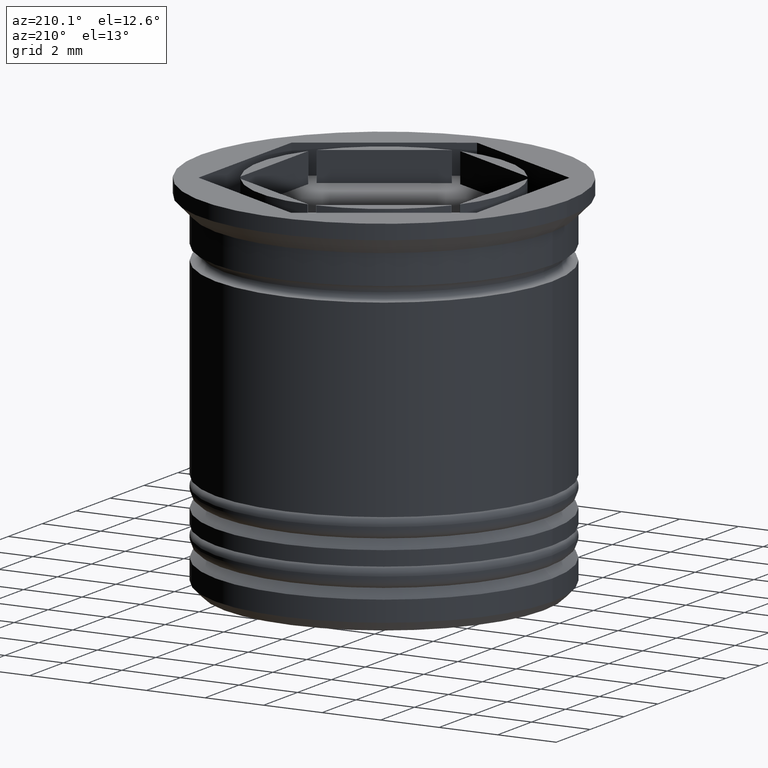
[diagram: clean part render]
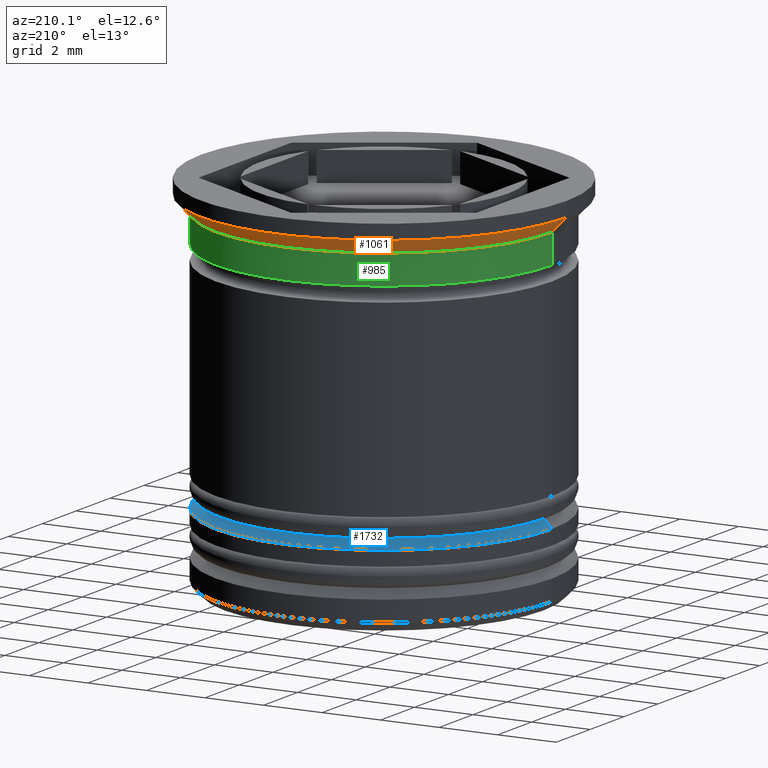
[diagram: same view with three faces highlighted in distinct colors, each labeled with its STEP entity id]
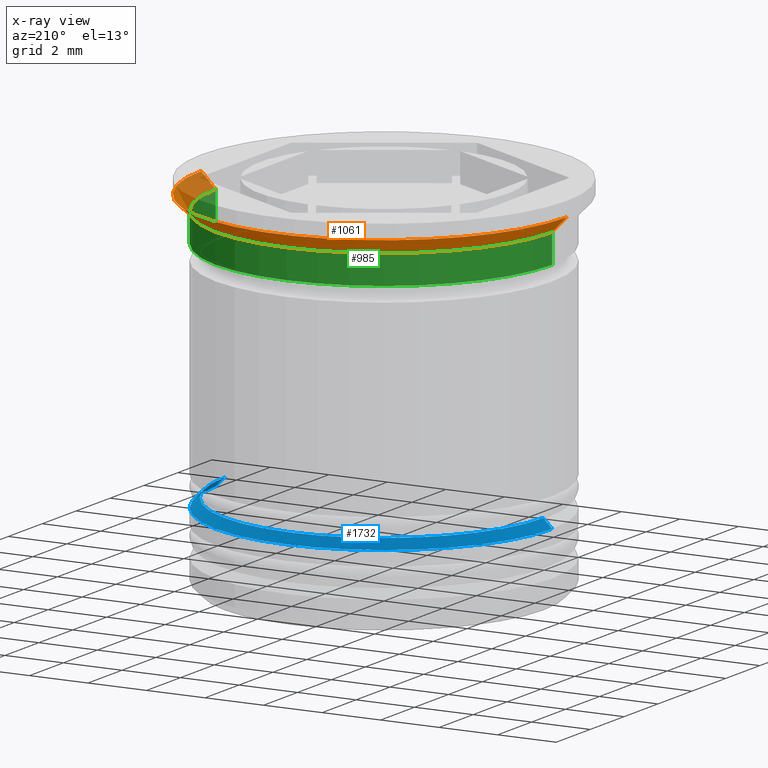
[diagram: x-ray of the same camera — body ghosted, the three highlighted faces saturated]
A machine part, auxiliary view with three faces highlighted in distinct colors.
The next image is the same camera in x-ray (body ghosted, the three faces saturated) — at least one of them is partly hidden behind the body in this view.
Their STEP definitions:

[orange] entity #1061 — the highlighted conical surface has half-angle 45 deg.
#10 = VERTEX_POINT ( 'NONE', #1309 ) ;
#39 = CARTESIAN_POINT ( 'NONE',  ( 6.250000000000000000, 0.000000000000000000, -0.5000000000000000000 ) ) ;
#64 = VECTOR ( 'NONE', #1911, 999.9999999999998863 ) ;
#114 = CARTESIAN_POINT ( 'NONE',  ( -5.749999999999998224, 7.041719095097278907E-16, -0.9999999999999995559 ) ) ;
#132 = AXIS2_PLACEMENT_3D ( 'NONE', #1730, #963, #378 ) ;
#137 = VERTEX_POINT ( 'NONE', #346 ) ;
#346 = CARTESIAN_POINT ( 'NONE',  ( 5.749999999999998224, 0.000000000000000000, -0.9999999999999995559 ) ) ;
#378 = DIRECTION ( 'NONE',  ( 1.000000000000000000, 0.000000000000000000, 0.000000000000000000 ) ) ;
#469 = ORIENTED_EDGE ( 'NONE', *, *, #1404, .T. ) ;
#587 = EDGE_CURVE ( 'NONE', #1710, #10, #1285, .T. ) ;
#629 = DIRECTION ( 'NONE',  ( 1.000000000000000000, 0.000000000000000000, 0.000000000000000000 ) ) ;
#693 = DIRECTION ( 'NONE',  ( -0.000000000000000000, -0.000000000000000000, 1.000000000000000000 ) ) ;
#723 = AXIS2_PLACEMENT_3D ( 'NONE', #1488, #693, #1281 ) ;
#740 = ORIENTED_EDGE ( 'NONE', *, *, #1101, .F. ) ;
#775 = DIRECTION ( 'NONE',  ( -0.000000000000000000, -0.000000000000000000, 1.000000000000000000 ) ) ;
#776 = ORIENTED_EDGE ( 'NONE', *, *, #1232, .F. ) ;
#958 = VERTEX_POINT ( 'NONE', #1369 ) ;
#963 = DIRECTION ( 'NONE',  ( -0.000000000000000000, -0.000000000000000000, 1.000000000000000000 ) ) ;
#1061 = ADVANCED_FACE ( 'NONE', ( #1114 ), #1531, .T. ) ;
#1082 = DIRECTION ( 'NONE',  ( 0.7071067811865482389, 0.000000000000000000, 0.7071067811865469066 ) ) ;
#1093 = CARTESIAN_POINT ( 'NONE',  ( -6.250000000000000000, 7.654042494670957606E-16, -0.5000000000000000000 ) ) ;
#1101 = EDGE_CURVE ( 'NONE', #137, #958, #1238, .T. ) ;
#1114 = FACE_OUTER_BOUND ( 'NONE', #1148, .T. ) ;
#1148 = EDGE_LOOP ( 'NONE', ( #469, #1193, #776, #740 ) ) ;
#1193 = ORIENTED_EDGE ( 'NONE', *, *, #587, .T. ) ;
#1232 = EDGE_CURVE ( 'NONE', #958, #10, #1388, .T. ) ;
#1238 = LINE ( 'NONE', #39, #1359 ) ;
#1281 = DIRECTION ( 'NONE',  ( -1.000000000000000000, 0.000000000000000000, 0.000000000000000000 ) ) ;
#1285 = LINE ( 'NONE', #1093, #64 ) ;
#1309 = CARTESIAN_POINT ( 'NONE',  ( -6.250000000000000000, 7.654042494670957606E-16, -0.5000000000000000000 ) ) ;
#1359 = VECTOR ( 'NONE', #1082, 999.9999999999998863 ) ;
#1369 = CARTESIAN_POINT ( 'NONE',  ( 6.250000000000000000, 0.000000000000000000, -0.5000000000000000000 ) ) ;
#1388 = CIRCLE ( 'NONE', #723, 6.250000000000000000 ) ;
#1404 = EDGE_CURVE ( 'NONE', #137, #1710, #1714, .T. ) ;
#1488 = CARTESIAN_POINT ( 'NONE',  ( 0.000000000000000000, 0.000000000000000000, -0.5000000000000000000 ) ) ;
#1531 = CONICAL_SURFACE ( 'NONE', #132, 6.250000000000000000, 0.7853981633974491672 ) ;
#1696 = CARTESIAN_POINT ( 'NONE',  ( 0.000000000000000000, 0.000000000000000000, -0.9999999999999995559 ) ) ;
#1710 = VERTEX_POINT ( 'NONE', #114 ) ;
#1714 = CIRCLE ( 'NONE', #1843, 5.749999999999998224 ) ;
#1730 = CARTESIAN_POINT ( 'NONE',  ( 0.000000000000000000, 0.000000000000000000, -0.5000000000000000000 ) ) ;
#1843 = AXIS2_PLACEMENT_3D ( 'NONE', #1696, #775, #629 ) ;
#1911 = DIRECTION ( 'NONE',  ( -0.7071067811865482389, 8.659560562354942719E-17, 0.7071067811865469066 ) ) ;

[blue] entity #1732 — the highlighted conical surface has half-angle 45 deg.
#14 = DIRECTION ( 'NONE',  ( -0.000000000000000000, -0.000000000000000000, 1.000000000000000000 ) ) ;
#25 = DIRECTION ( 'NONE',  ( -0.7071067811865512365, 0.000000000000000000, -0.7071067811865439090 ) ) ;
#99 = AXIS2_PLACEMENT_3D ( 'NONE', #234, #971, #1582 ) ;
#146 = CARTESIAN_POINT ( 'NONE',  ( 0.000000000000000000, 0.000000000000000000, -9.500000000000001776 ) ) ;
#149 = ORIENTED_EDGE ( 'NONE', *, *, #182, .F. ) ;
#163 = CIRCLE ( 'NONE', #99, 5.750000000000001776 ) ;
#182 = EDGE_CURVE ( 'NONE', #1237, #1570, #1713, .T. ) ;
#234 = CARTESIAN_POINT ( 'NONE',  ( 0.000000000000000000, 0.000000000000000000, -10.00000000000000533 ) ) ;
#258 = VECTOR ( 'NONE', #25, 1000.000000000000000 ) ;
#295 = CARTESIAN_POINT ( 'NONE',  ( 0.000000000000000000, 0.000000000000000000, -9.700000000000006395 ) ) ;
#314 = EDGE_CURVE ( 'NONE', #1570, #1878, #163, .T. ) ;
#410 = LINE ( 'NONE', #1640, #691 ) ;
#425 = AXIS2_PLACEMENT_3D ( 'NONE', #146, #1344, #1329 ) ;
#498 = CARTESIAN_POINT ( 'NONE',  ( 5.450000000000000178, 0.000000000000000000, -9.700000000000006395 ) ) ;
#691 = VECTOR ( 'NONE', #1780, 1000.000000000000000 ) ;
#720 = CIRCLE ( 'NONE', #888, 5.450000000000000178 ) ;
#768 = CARTESIAN_POINT ( 'NONE',  ( 5.750000000000001776, 0.000000000000000000, -10.00000000000000533 ) ) ;
#778 = EDGE_LOOP ( 'NONE', ( #1904, #1331, #1386, #149 ) ) ;
#888 = AXIS2_PLACEMENT_3D ( 'NONE', #295, #14, #1224 ) ;
#931 = EDGE_CURVE ( 'NONE', #1311, #1237, #720, .T. ) ;
#971 = DIRECTION ( 'NONE',  ( 0.000000000000000000, 0.000000000000000000, -1.000000000000000000 ) ) ;
#1161 = FACE_OUTER_BOUND ( 'NONE', #778, .T. ) ;
#1224 = DIRECTION ( 'NONE',  ( -1.000000000000000000, 0.000000000000000000, 0.000000000000000000 ) ) ;
#1237 = VERTEX_POINT ( 'NONE', #1775 ) ;
#1247 = CARTESIAN_POINT ( 'NONE',  ( -5.750000000000001776, 7.041719095097282852E-16, -10.00000000000000533 ) ) ;
#1311 = VERTEX_POINT ( 'NONE', #498 ) ;
#1329 = DIRECTION ( 'NONE',  ( -1.000000000000000000, 0.000000000000000000, 0.000000000000000000 ) ) ;
#1331 = ORIENTED_EDGE ( 'NONE', *, *, #1676, .T. ) ;
#1344 = DIRECTION ( 'NONE',  ( 0.000000000000000000, 0.000000000000000000, -1.000000000000000000 ) ) ;
#1386 = ORIENTED_EDGE ( 'NONE', *, *, #314, .F. ) ;
#1387 = CARTESIAN_POINT ( 'NONE',  ( -5.249999999999992895, 0.000000000000000000, -9.500000000000001776 ) ) ;
#1570 = VERTEX_POINT ( 'NONE', #1247 ) ;
#1582 = DIRECTION ( 'NONE',  ( -1.000000000000000000, 0.000000000000000000, 0.000000000000000000 ) ) ;
#1640 = CARTESIAN_POINT ( 'NONE',  ( 5.249999999999992895, 6.429395695523595278E-16, -9.500000000000001776 ) ) ;
#1676 = EDGE_CURVE ( 'NONE', #1311, #1878, #410, .T. ) ;
#1713 = LINE ( 'NONE', #1387, #258 ) ;
#1732 = ADVANCED_FACE ( 'NONE', ( #1161 ), #1754, .T. ) ;
#1754 = CONICAL_SURFACE ( 'NONE', #425, 5.249999999999992895, 0.7853981633974533860 ) ;
#1775 = CARTESIAN_POINT ( 'NONE',  ( -5.450000000000000178, 6.674325055353075238E-16, -9.700000000000006395 ) ) ;
#1780 = DIRECTION ( 'NONE',  ( 0.7071067811865512365, 8.659560562354978464E-17, -0.7071067811865439090 ) ) ;
#1878 = VERTEX_POINT ( 'NONE', #768 ) ;
#1904 = ORIENTED_EDGE ( 'NONE', *, *, #931, .F. ) ;

[green] entity #985 — the highlighted cylindrical surface (partial cylindrical patch) has radius 5.75 mm, axis along (-0, -0, 1).
#51 = ORIENTED_EDGE ( 'NONE', *, *, #1397, .T. ) ;
#114 = CARTESIAN_POINT ( 'NONE',  ( -5.749999999999998224, 7.041719095097278907E-16, -0.9999999999999995559 ) ) ;
#137 = VERTEX_POINT ( 'NONE', #346 ) ;
#152 = CYLINDRICAL_SURFACE ( 'NONE', #1633, 5.749999999999998224 ) ;
#171 = VERTEX_POINT ( 'NONE', #214 ) ;
#214 = CARTESIAN_POINT ( 'NONE',  ( 5.749999999999999112, 0.000000000000000000, -2.000000000000000444 ) ) ;
#298 = VECTOR ( 'NONE', #1075, 1000.000000000000000 ) ;
#346 = CARTESIAN_POINT ( 'NONE',  ( 5.749999999999998224, 0.000000000000000000, -0.9999999999999995559 ) ) ;
#445 = CARTESIAN_POINT ( 'NONE',  ( -5.749999999999998224, 7.041719095097278907E-16, 0.000000000000000000 ) ) ;
#460 = CARTESIAN_POINT ( 'NONE',  ( 0.000000000000000000, 0.000000000000000000, -2.000000000000000444 ) ) ;
#466 = DIRECTION ( 'NONE',  ( 1.000000000000000000, 0.000000000000000000, 0.000000000000000000 ) ) ;
#489 = ORIENTED_EDGE ( 'NONE', *, *, #1779, .T. ) ;
#508 = AXIS2_PLACEMENT_3D ( 'NONE', #460, #1829, #466 ) ;
#530 = CARTESIAN_POINT ( 'NONE',  ( -5.749999999999999112, 7.041719095097280880E-16, -2.000000000000000444 ) ) ;
#604 = CARTESIAN_POINT ( 'NONE',  ( 5.749999999999998224, 0.000000000000000000, 0.000000000000000000 ) ) ;
#619 = ORIENTED_EDGE ( 'NONE', *, *, #1525, .F. ) ;
#629 = DIRECTION ( 'NONE',  ( 1.000000000000000000, 0.000000000000000000, 0.000000000000000000 ) ) ;
#743 = CARTESIAN_POINT ( 'NONE',  ( 0.000000000000000000, 0.000000000000000000, 0.000000000000000000 ) ) ;
#775 = DIRECTION ( 'NONE',  ( -0.000000000000000000, -0.000000000000000000, 1.000000000000000000 ) ) ;
#926 = FACE_OUTER_BOUND ( 'NONE', #1403, .T. ) ;
#985 = ADVANCED_FACE ( 'NONE', ( #926 ), #152, .T. ) ;
#1075 = DIRECTION ( 'NONE',  ( -0.000000000000000000, -0.000000000000000000, 1.000000000000000000 ) ) ;
#1227 = CIRCLE ( 'NONE', #508, 5.749999999999999112 ) ;
#1248 = VERTEX_POINT ( 'NONE', #530 ) ;
#1333 = LINE ( 'NONE', #445, #298 ) ;
#1355 = DIRECTION ( 'NONE',  ( 1.000000000000000000, 0.000000000000000000, 0.000000000000000000 ) ) ;
#1356 = LINE ( 'NONE', #604, #1594 ) ;
#1397 = EDGE_CURVE ( 'NONE', #1248, #1710, #1333, .T. ) ;
#1403 = EDGE_LOOP ( 'NONE', ( #489, #51, #1661, #619 ) ) ;
#1404 = EDGE_CURVE ( 'NONE', #137, #1710, #1714, .T. ) ;
#1525 = EDGE_CURVE ( 'NONE', #171, #137, #1356, .T. ) ;
#1594 = VECTOR ( 'NONE', #1831, 1000.000000000000000 ) ;
#1633 = AXIS2_PLACEMENT_3D ( 'NONE', #743, #1994, #1355 ) ;
#1661 = ORIENTED_EDGE ( 'NONE', *, *, #1404, .F. ) ;
#1696 = CARTESIAN_POINT ( 'NONE',  ( 0.000000000000000000, 0.000000000000000000, -0.9999999999999995559 ) ) ;
#1710 = VERTEX_POINT ( 'NONE', #114 ) ;
#1714 = CIRCLE ( 'NONE', #1843, 5.749999999999998224 ) ;
#1779 = EDGE_CURVE ( 'NONE', #171, #1248, #1227, .T. ) ;
#1829 = DIRECTION ( 'NONE',  ( -0.000000000000000000, -0.000000000000000000, 1.000000000000000000 ) ) ;
#1831 = DIRECTION ( 'NONE',  ( -0.000000000000000000, -0.000000000000000000, 1.000000000000000000 ) ) ;
#1843 = AXIS2_PLACEMENT_3D ( 'NONE', #1696, #775, #629 ) ;
#1994 = DIRECTION ( 'NONE',  ( -0.000000000000000000, -0.000000000000000000, 1.000000000000000000 ) ) ;